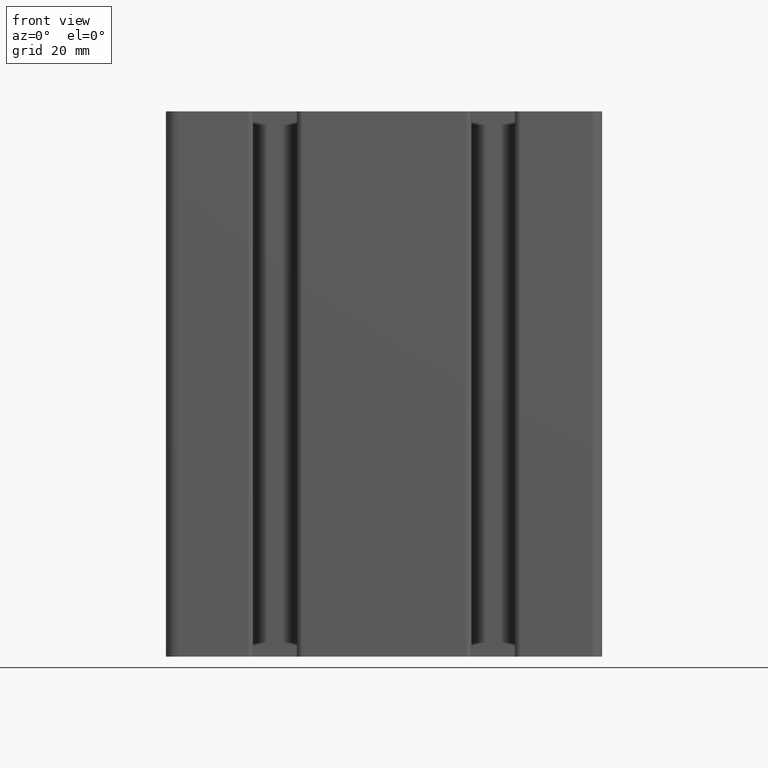
[diagram: clean part render]
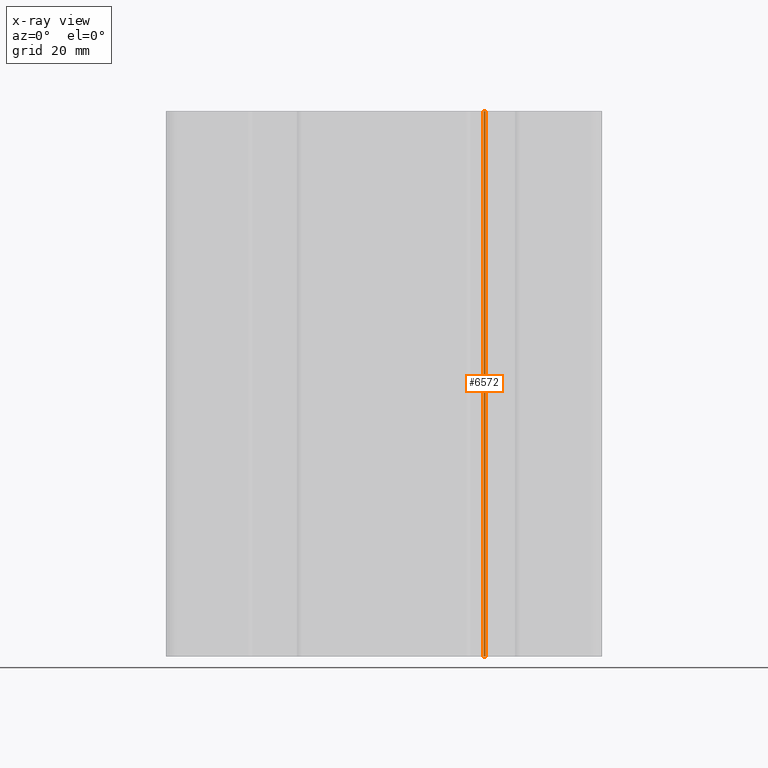
[diagram: x-ray — body ghosted, one internal face saturated and labeled with its STEP entity id]
A machine part, front view, then the same camera in x-ray: the body is ghosted and one INTERNAL B-rep face — a face not visible from any outside direction — is saturated and labeled: STEP entity #6572.
In plain terms, the highlighted cylindrical surface (edge-blend (fillet) strip) has radius 0.3 mm, axis along (0, 0, 1).
Its self-contained STEP definition (entity closure, byte-faithful):
#243=CIRCLE('',#7123,0.300000000000001);
#244=CIRCLE('',#7124,0.300000000000001);
#472=CYLINDRICAL_SURFACE('',#7122,0.300000000000001);
#752=FACE_OUTER_BOUND('',#1086,.T.);
#1086=EDGE_LOOP('',(#5071,#5072,#5073,#5074));
#1664=LINE('',#10696,#2324);
#1665=LINE('',#10702,#2325);
#2324=VECTOR('',#8676,100.);
#2325=VECTOR('',#8683,100.);
#2985=VERTEX_POINT('',#10692);
#2986=VERTEX_POINT('',#10694);
#2987=VERTEX_POINT('',#10698);
#2988=VERTEX_POINT('',#10700);
#3862=EDGE_CURVE('',#2986,#2985,#1664,.T.);
#3863=EDGE_CURVE('',#2985,#2987,#243,.T.);
#3864=EDGE_CURVE('',#2988,#2986,#244,.T.);
#3865=EDGE_CURVE('',#2988,#2987,#1665,.T.);
#5071=ORIENTED_EDGE('',*,*,#3863,.F.);
#5072=ORIENTED_EDGE('',*,*,#3862,.F.);
#5073=ORIENTED_EDGE('',*,*,#3864,.F.);
#5074=ORIENTED_EDGE('',*,*,#3865,.T.);
#6572=ADVANCED_FACE('',(#752),#472,.T.);
#7122=AXIS2_PLACEMENT_3D('',#10697,#8677,#8678);
#7123=AXIS2_PLACEMENT_3D('',#10699,#8679,#8680);
#7124=AXIS2_PLACEMENT_3D('',#10701,#8681,#8682);
#8676=DIRECTION('',(0.,0.,1.));
#8677=DIRECTION('center_axis',(0.,0.,1.));
#8678=DIRECTION('ref_axis',(0.397248122083512,0.917711245164362,0.));
#8679=DIRECTION('center_axis',(0.,0.,1.));
#8680=DIRECTION('ref_axis',(0.397248122083512,0.917711245164362,0.));
#8681=DIRECTION('center_axis',(0.,0.,-1.));
#8682=DIRECTION('ref_axis',(0.397248122083512,0.917711245164362,0.));
#8683=DIRECTION('',(0.,0.,1.));
#10692=CARTESIAN_POINT('',(18.6493540287639,-3.12022367667399,100.));
#10694=CARTESIAN_POINT('',(18.6493540287639,-3.12022367667399,0.));
#10696=CARTESIAN_POINT('',(18.6493540287639,-3.12022367667399,0.));
#10697=CARTESIAN_POINT('Origin',(18.5301795921389,-3.3955370502233,0.));
#10698=CARTESIAN_POINT('',(18.2703720007143,-3.24553699876282,100.));
#10699=CARTESIAN_POINT('Origin',(18.5301795921389,-3.3955370502233,100.));
#10700=CARTESIAN_POINT('',(18.2703720007143,-3.24553699876282,0.));
#10701=CARTESIAN_POINT('Origin',(18.5301795921389,-3.3955370502233,0.));
#10702=CARTESIAN_POINT('',(18.2703720007143,-3.24553699876282,0.));